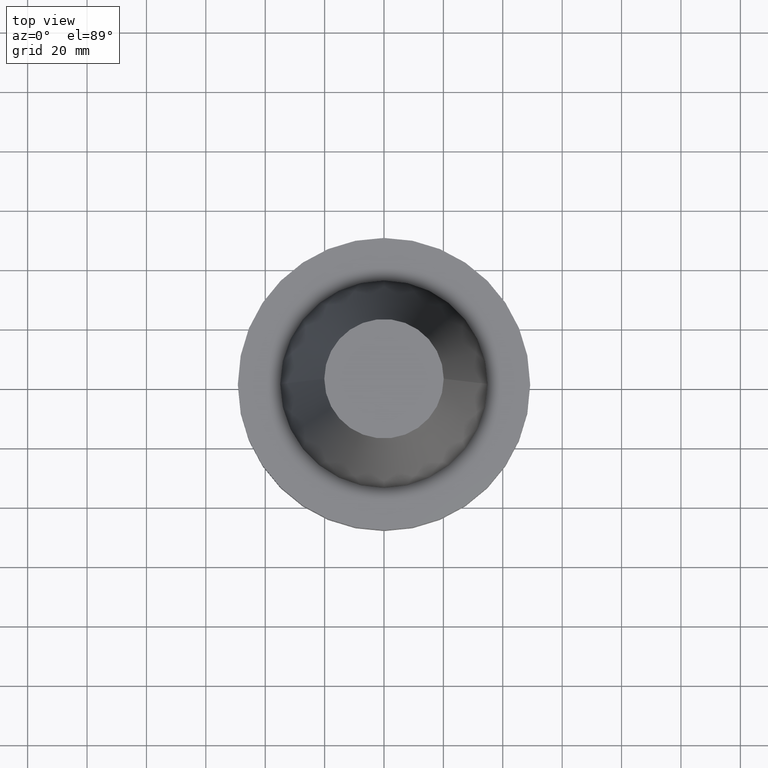
[diagram: clean part render]
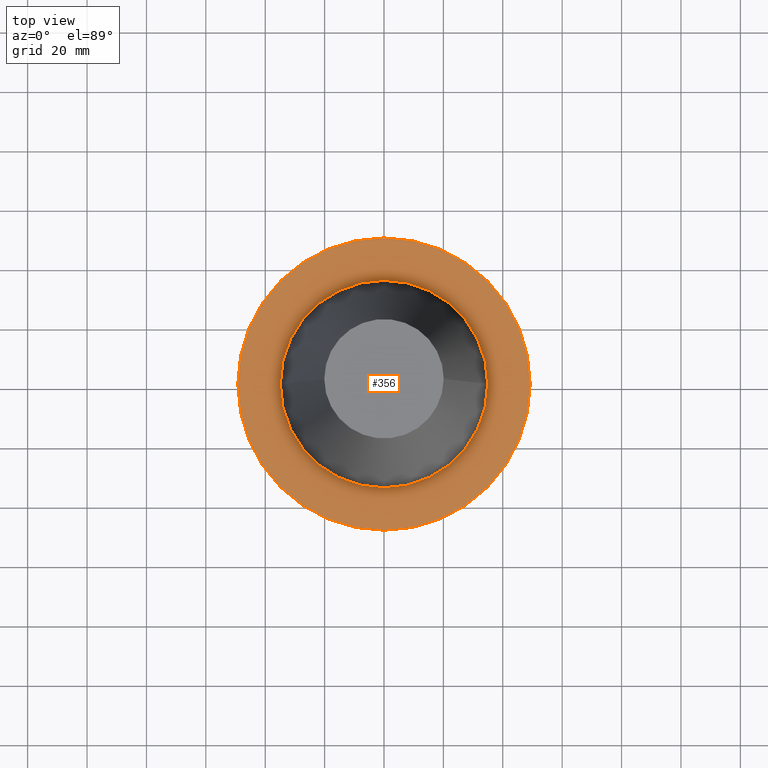
[diagram: same view with one face highlighted and labeled with its STEP entity id]
A machine part, top view. The second image highlights one B-rep face of the part: STEP entity #356.
In plain terms, the highlighted planar face has unit normal (0, 0, -1).
Its self-contained STEP definition (entity closure, byte-faithful):
#17 = DIRECTION ( 'NONE',  ( 1.000000000000000000, 0.000000000000000000, 0.000000000000000000 ) ) ;
#27 = CIRCLE ( 'NONE', #759, 34.92499999999999005 ) ;
#31 = VERTEX_POINT ( 'NONE', #706 ) ;
#44 = AXIS2_PLACEMENT_3D ( 'NONE', #345, #145, #213 ) ;
#49 = DIRECTION ( 'NONE',  ( 1.000000000000000000, 0.000000000000000000, 0.000000000000000000 ) ) ;
#81 = CARTESIAN_POINT ( 'NONE',  ( 0.000000000000000000, 0.000000000000000000, -1.499999999999987566 ) ) ;
#110 = VERTEX_POINT ( 'NONE', #620 ) ;
#145 = DIRECTION ( 'NONE',  ( 0.000000000000000000, 0.000000000000000000, -1.000000000000000000 ) ) ;
#152 = DIRECTION ( 'NONE',  ( -0.000000000000000000, -0.000000000000000000, 1.000000000000000000 ) ) ;
#156 = PLANE ( 'NONE',  #44 ) ;
#200 = VERTEX_POINT ( 'NONE', #842 ) ;
#213 = DIRECTION ( 'NONE',  ( -1.000000000000000000, 0.000000000000000000, -0.000000000000000000 ) ) ;
#229 = EDGE_CURVE ( 'NONE', #389, #31, #442, .T. ) ;
#248 = CARTESIAN_POINT ( 'NONE',  ( -34.92499999999999005, 4.277078946022130098E-15, -1.499999999999987566 ) ) ;
#257 = EDGE_CURVE ( 'NONE', #31, #389, #27, .T. ) ;
#258 = ORIENTED_EDGE ( 'NONE', *, *, #450, .T. ) ;
#272 = CARTESIAN_POINT ( 'NONE',  ( 0.000000000000000000, 0.000000000000000000, -1.499999999999987566 ) ) ;
#282 = CIRCLE ( 'NONE', #458, 49.21499999999999631 ) ;
#315 = CARTESIAN_POINT ( 'NONE',  ( 0.000000000000000000, 0.000000000000000000, -1.499999999999987566 ) ) ;
#345 = CARTESIAN_POINT ( 'NONE',  ( 0.000000000000000000, 49.21499999999999631, -1.499999999999992895 ) ) ;
#356 = ADVANCED_FACE ( 'NONE', ( #555, #748 ), #156, .F. ) ;
#389 = VERTEX_POINT ( 'NONE', #248 ) ;
#442 = CIRCLE ( 'NONE', #784, 34.92499999999999005 ) ;
#450 = EDGE_CURVE ( 'NONE', #110, #200, #571, .T. ) ;
#458 = AXIS2_PLACEMENT_3D ( 'NONE', #782, #776, #49 ) ;
#511 = DIRECTION ( 'NONE',  ( -0.000000000000000000, -0.000000000000000000, 1.000000000000000000 ) ) ;
#555 = FACE_BOUND ( 'NONE', #595, .T. ) ;
#571 = CIRCLE ( 'NONE', #658, 49.21499999999999631 ) ;
#582 = DIRECTION ( 'NONE',  ( 1.000000000000000000, 0.000000000000000000, 0.000000000000000000 ) ) ;
#591 = EDGE_LOOP ( 'NONE', ( #258, #745 ) ) ;
#595 = EDGE_LOOP ( 'NONE', ( #703, #686 ) ) ;
#620 = CARTESIAN_POINT ( 'NONE',  ( 49.21499999999999631, 0.000000000000000000, -1.499999999999987566 ) ) ;
#654 = DIRECTION ( 'NONE',  ( -0.000000000000000000, -0.000000000000000000, 1.000000000000000000 ) ) ;
#658 = AXIS2_PLACEMENT_3D ( 'NONE', #315, #654, #582 ) ;
#686 = ORIENTED_EDGE ( 'NONE', *, *, #229, .F. ) ;
#703 = ORIENTED_EDGE ( 'NONE', *, *, #257, .F. ) ;
#706 = CARTESIAN_POINT ( 'NONE',  ( 34.92499999999999005, 0.000000000000000000, -1.499999999999987566 ) ) ;
#745 = ORIENTED_EDGE ( 'NONE', *, *, #847, .T. ) ;
#748 = FACE_OUTER_BOUND ( 'NONE', #591, .T. ) ;
#759 = AXIS2_PLACEMENT_3D ( 'NONE', #81, #152, #17 ) ;
#776 = DIRECTION ( 'NONE',  ( -0.000000000000000000, -0.000000000000000000, 1.000000000000000000 ) ) ;
#782 = CARTESIAN_POINT ( 'NONE',  ( 0.000000000000000000, 0.000000000000000000, -1.499999999999987566 ) ) ;
#784 = AXIS2_PLACEMENT_3D ( 'NONE', #272, #511, #800 ) ;
#800 = DIRECTION ( 'NONE',  ( 1.000000000000000000, 0.000000000000000000, 0.000000000000000000 ) ) ;
#842 = CARTESIAN_POINT ( 'NONE',  ( -49.21499999999999631, 6.027099222003697826E-15, -1.499999999999987566 ) ) ;
#847 = EDGE_CURVE ( 'NONE', #200, #110, #282, .T. ) ;